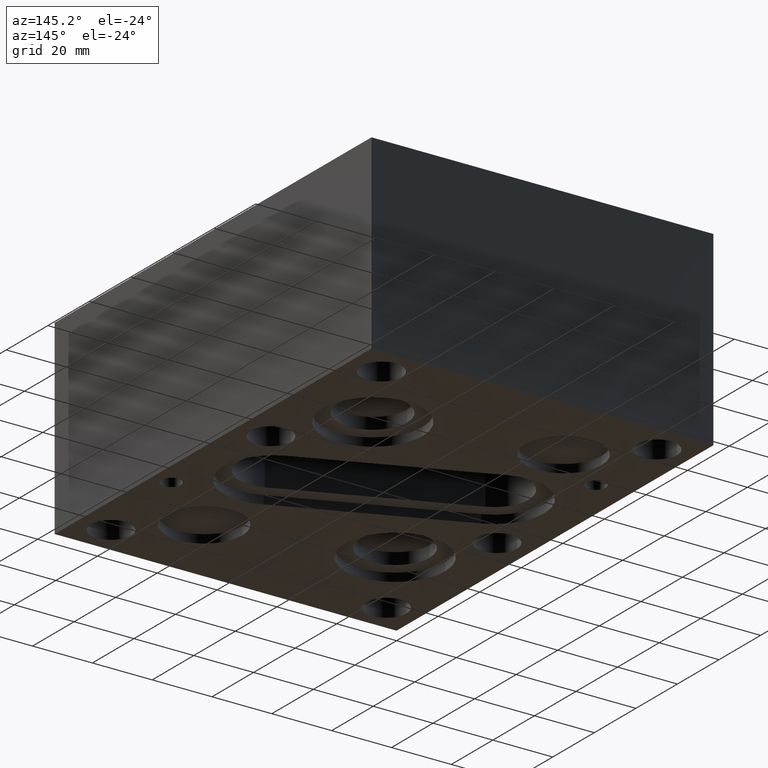
[diagram: clean part render]
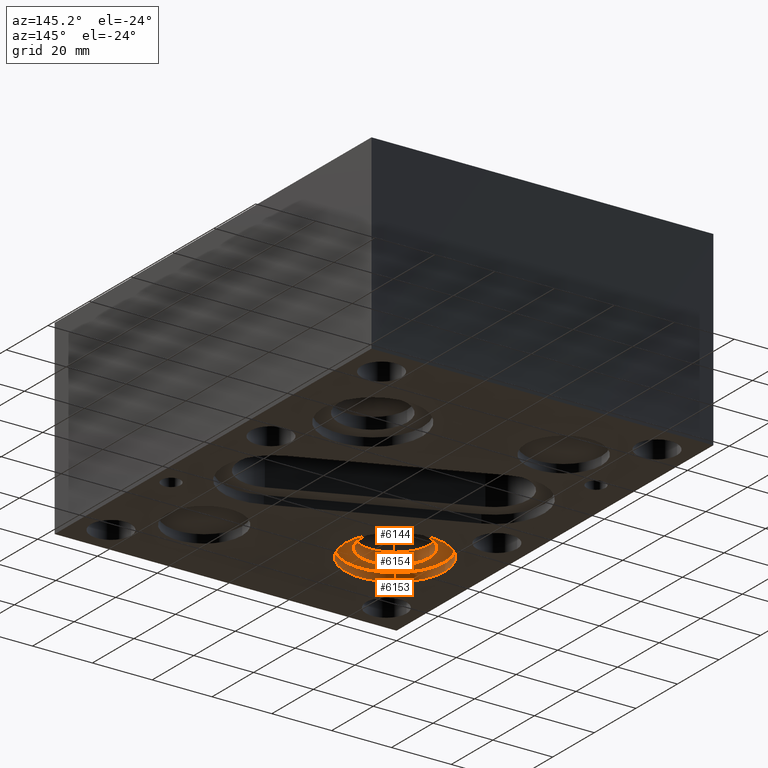
[diagram: same view with one multi-face feature highlighted, each face labeled with its STEP entity id]
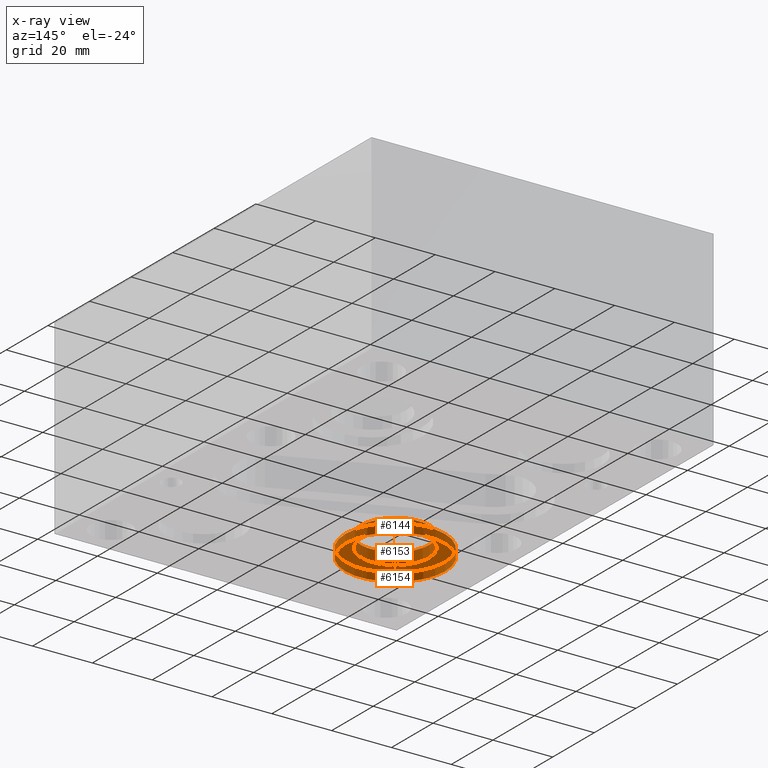
[diagram: x-ray of the same camera — body ghosted, the whole feature saturated]
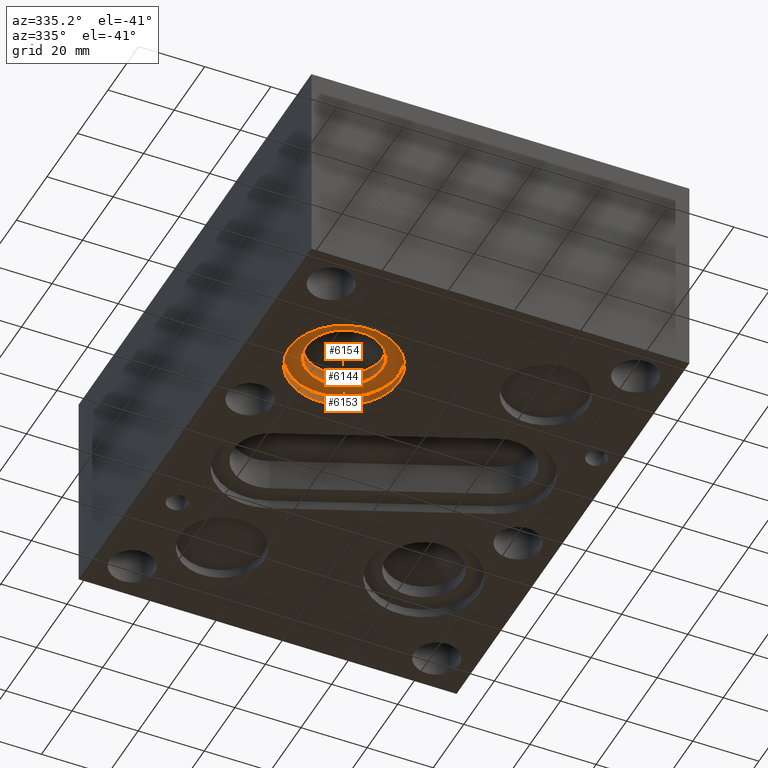
[diagram: same view with one multi-face feature highlighted, each face labeled with its STEP entity id]
A machine part, auxiliary view. The highlighted faces form ONE feature: a stepped (counterbored) hole: 2 coaxial cylindrical walls of radii 11.5062 -> 16.6751 mm joined by 1 annular planar shoulder face(s). The faces share edges in the B-rep.
The next image is the same camera in x-ray: the body ghosted and the whole hole feature saturated, so the bore chain is visible through the body.
A second angle (auxiliary view) of the same feature is appended — it is thin or edge-on in the first view.
Their STEP definitions:
[1] entity #6153 (Cylinder):
#622=CIRCLE('',#6216,16.6751);
#623=CIRCLE('',#6217,16.6751);
#643=CIRCLE('',#6436,16.6751);
#644=CIRCLE('',#6437,16.6751);
#669=CYLINDRICAL_SURFACE('',#6435,16.6751);
#970=FACE_OUTER_BOUND('',#1319,.T.);
#1319=EDGE_LOOP('',(#5575,#5576,#5577,#5578,#5579,#5580));
#1941=LINE('',#10419,#2555);
#2555=VECTOR('',#7573,16.6751);
#2607=VERTEX_POINT('',#7744);
#2608=VERTEX_POINT('',#7745);
#3123=VERTEX_POINT('',#10418);
#3124=VERTEX_POINT('',#10420);
#3182=EDGE_CURVE('',#2607,#2608,#622,.T.);
#3183=EDGE_CURVE('',#2608,#2607,#623,.T.);
#3951=EDGE_CURVE('',#2608,#3123,#1941,.T.);
#3952=EDGE_CURVE('',#3124,#3123,#643,.T.);
#3953=EDGE_CURVE('',#3123,#3124,#644,.T.);
#5575=ORIENTED_EDGE('',*,*,#3182,.F.);
#5576=ORIENTED_EDGE('',*,*,#3183,.F.);
#5577=ORIENTED_EDGE('',*,*,#3951,.T.);
#5578=ORIENTED_EDGE('',*,*,#3952,.F.);
#5579=ORIENTED_EDGE('',*,*,#3953,.F.);
#5580=ORIENTED_EDGE('',*,*,#3951,.F.);
#6153=ADVANCED_FACE('',(#970),#669,.F.);
#6216=AXIS2_PLACEMENT_3D('',#7746,#6555,#6556);
#6217=AXIS2_PLACEMENT_3D('',#7747,#6557,#6558);
#6435=AXIS2_PLACEMENT_3D('',#10417,#7571,#7572);
#6436=AXIS2_PLACEMENT_3D('',#10421,#7574,#7575);
#6437=AXIS2_PLACEMENT_3D('',#10422,#7576,#7577);
#6555=DIRECTION('center_axis',(0.,0.,1.));
#6556=DIRECTION('ref_axis',(1.,0.,0.));
#6557=DIRECTION('center_axis',(0.,0.,1.));
#6558=DIRECTION('ref_axis',(1.,0.,0.));
#7571=DIRECTION('center_axis',(0.,0.,-1.));
#7572=DIRECTION('ref_axis',(1.,0.,0.));
#7573=DIRECTION('',(0.,0.,1.));
#7574=DIRECTION('center_axis',(0.,0.,-1.));
#7575=DIRECTION('ref_axis',(1.,0.,0.));
#7576=DIRECTION('center_axis',(0.,0.,-1.));
#7577=DIRECTION('ref_axis',(1.,0.,0.));
#7744=CARTESIAN_POINT('',(45.2501,40.4622,0.));
#7745=CARTESIAN_POINT('',(11.8999,40.4622,0.));
#7746=CARTESIAN_POINT('Origin',(28.575,40.4622,0.));
#7747=CARTESIAN_POINT('Origin',(28.575,40.4622,0.));
#10417=CARTESIAN_POINT('Origin',(28.575,40.4622,1.397));
#10418=CARTESIAN_POINT('',(11.8999,40.4622,2.794));
#10419=CARTESIAN_POINT('',(11.8999,40.4622,1.397));
#10420=CARTESIAN_POINT('',(45.2501,40.4622,2.794));
#10421=CARTESIAN_POINT('Origin',(28.575,40.4622,2.794));
#10422=CARTESIAN_POINT('Origin',(28.575,40.4622,2.794));
[2] entity #6144 (Cylinder):
#631=CIRCLE('',#6414,11.5062);
#632=CIRCLE('',#6415,11.5062);
#633=CIRCLE('',#6417,11.5062);
#664=CYLINDRICAL_SURFACE('',#6416,11.5062);
#961=FACE_OUTER_BOUND('',#1309,.T.);
#1309=EDGE_LOOP('',(#5536,#5537,#5538,#5539,#5540));
#1935=LINE('',#10384,#2549);
#2549=VECTOR('',#7531,11.5062);
#3109=VERTEX_POINT('',#10375);
#3110=VERTEX_POINT('',#10376);
#3112=VERTEX_POINT('',#10382);
#3932=EDGE_CURVE('',#3109,#3110,#631,.T.);
#3934=EDGE_CURVE('',#3110,#3109,#632,.T.);
#3935=EDGE_CURVE('',#3112,#3112,#633,.T.);
#3936=EDGE_CURVE('',#3112,#3110,#1935,.T.);
#5536=ORIENTED_EDGE('',*,*,#3935,.F.);
#5537=ORIENTED_EDGE('',*,*,#3936,.T.);
#5538=ORIENTED_EDGE('',*,*,#3932,.F.);
#5539=ORIENTED_EDGE('',*,*,#3934,.F.);
#5540=ORIENTED_EDGE('',*,*,#3936,.F.);
#6144=ADVANCED_FACE('',(#961),#664,.F.);
#6414=AXIS2_PLACEMENT_3D('',#10377,#7522,#7523);
#6415=AXIS2_PLACEMENT_3D('',#10380,#7525,#7526);
#6416=AXIS2_PLACEMENT_3D('',#10381,#7527,#7528);
#6417=AXIS2_PLACEMENT_3D('',#10383,#7529,#7530);
#7522=DIRECTION('center_axis',(0.,0.,-1.));
#7523=DIRECTION('ref_axis',(1.,0.,0.));
#7525=DIRECTION('center_axis',(0.,0.,-1.));
#7526=DIRECTION('ref_axis',(1.,0.,0.));
#7527=DIRECTION('center_axis',(0.,0.,-1.));
#7528=DIRECTION('ref_axis',(1.,0.,0.));
#7529=DIRECTION('center_axis',(0.,0.,1.));
#7530=DIRECTION('ref_axis',(1.,0.,0.));
#7531=DIRECTION('',(0.,0.,1.));
#10375=CARTESIAN_POINT('',(40.0812,40.4622,6.64311));
#10376=CARTESIAN_POINT('',(17.0688,40.4622,6.64311));
#10377=CARTESIAN_POINT('Origin',(28.575,40.4622,6.64311));
#10380=CARTESIAN_POINT('Origin',(28.575,40.4622,6.64311));
#10381=CARTESIAN_POINT('Origin',(28.575,40.4622,3.321555));
#10382=CARTESIAN_POINT('',(17.0688,40.4622,2.794));
#10383=CARTESIAN_POINT('Origin',(28.575,40.4622,2.794));
#10384=CARTESIAN_POINT('',(17.0688,40.4622,3.321555));
[3] entity #6154 (Plane):
#592=FACE_BOUND('',#1321,.T.);
#633=CIRCLE('',#6417,11.5062);
#643=CIRCLE('',#6436,16.6751);
#644=CIRCLE('',#6437,16.6751);
#971=FACE_OUTER_BOUND('',#1320,.T.);
#1320=EDGE_LOOP('',(#5581,#5582));
#1321=EDGE_LOOP('',(#5583));
#3112=VERTEX_POINT('',#10382);
#3123=VERTEX_POINT('',#10418);
#3124=VERTEX_POINT('',#10420);
#3935=EDGE_CURVE('',#3112,#3112,#633,.T.);
#3952=EDGE_CURVE('',#3124,#3123,#643,.T.);
#3953=EDGE_CURVE('',#3123,#3124,#644,.T.);
#5581=ORIENTED_EDGE('',*,*,#3952,.T.);
#5582=ORIENTED_EDGE('',*,*,#3953,.T.);
#5583=ORIENTED_EDGE('',*,*,#3935,.T.);
#5855=PLANE('',#6438);
#6154=ADVANCED_FACE('',(#971,#592),#5855,.T.);
#6417=AXIS2_PLACEMENT_3D('',#10383,#7529,#7530);
#6436=AXIS2_PLACEMENT_3D('',#10421,#7574,#7575);
#6437=AXIS2_PLACEMENT_3D('',#10422,#7576,#7577);
#6438=AXIS2_PLACEMENT_3D('',#10423,#7578,#7579);
#7529=DIRECTION('center_axis',(0.,0.,1.));
#7530=DIRECTION('ref_axis',(1.,0.,0.));
#7574=DIRECTION('center_axis',(0.,0.,-1.));
#7575=DIRECTION('ref_axis',(1.,0.,0.));
#7576=DIRECTION('center_axis',(0.,0.,-1.));
#7577=DIRECTION('ref_axis',(1.,0.,0.));
#7578=DIRECTION('center_axis',(0.,0.,-1.));
#7579=DIRECTION('ref_axis',(1.,0.,0.));
#10382=CARTESIAN_POINT('',(17.0688,40.4622,2.794));
#10383=CARTESIAN_POINT('Origin',(28.575,40.4622,2.794));
#10418=CARTESIAN_POINT('',(11.8999,40.4622,2.794));
#10420=CARTESIAN_POINT('',(45.2501,40.4622,2.794));
#10421=CARTESIAN_POINT('Origin',(28.575,40.4622,2.794));
#10422=CARTESIAN_POINT('Origin',(28.575,40.4622,2.794));
#10423=CARTESIAN_POINT('Origin',(28.575,40.4622,2.794));